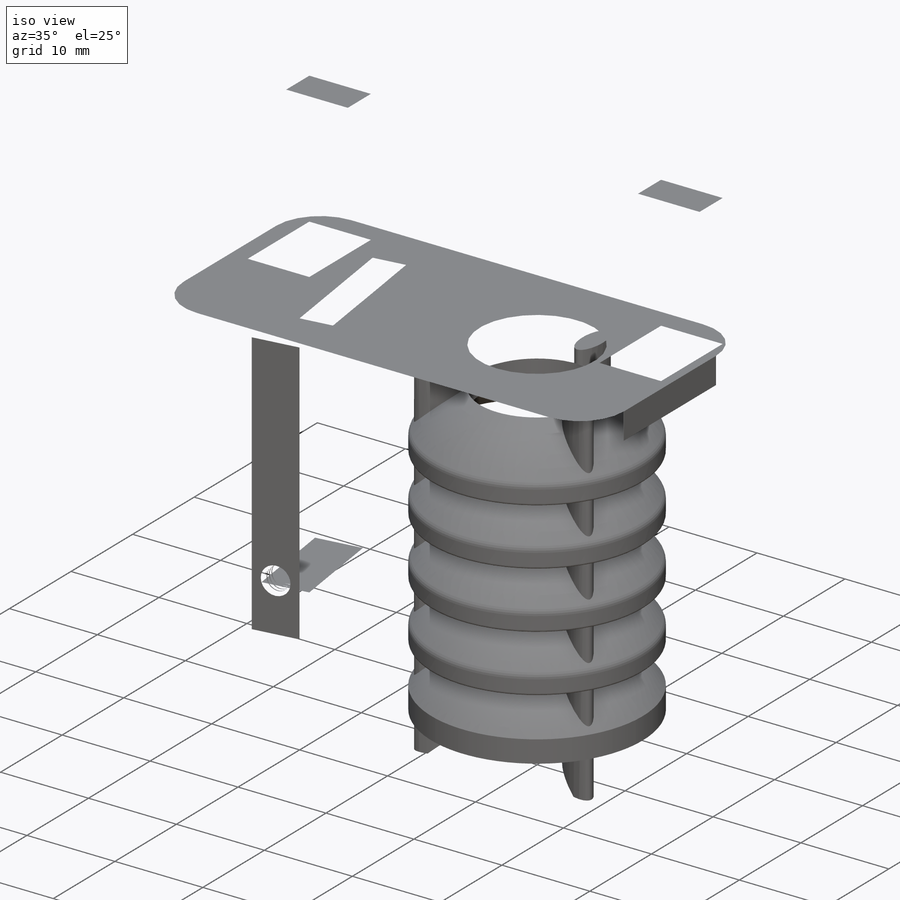
[diagram: iso view]
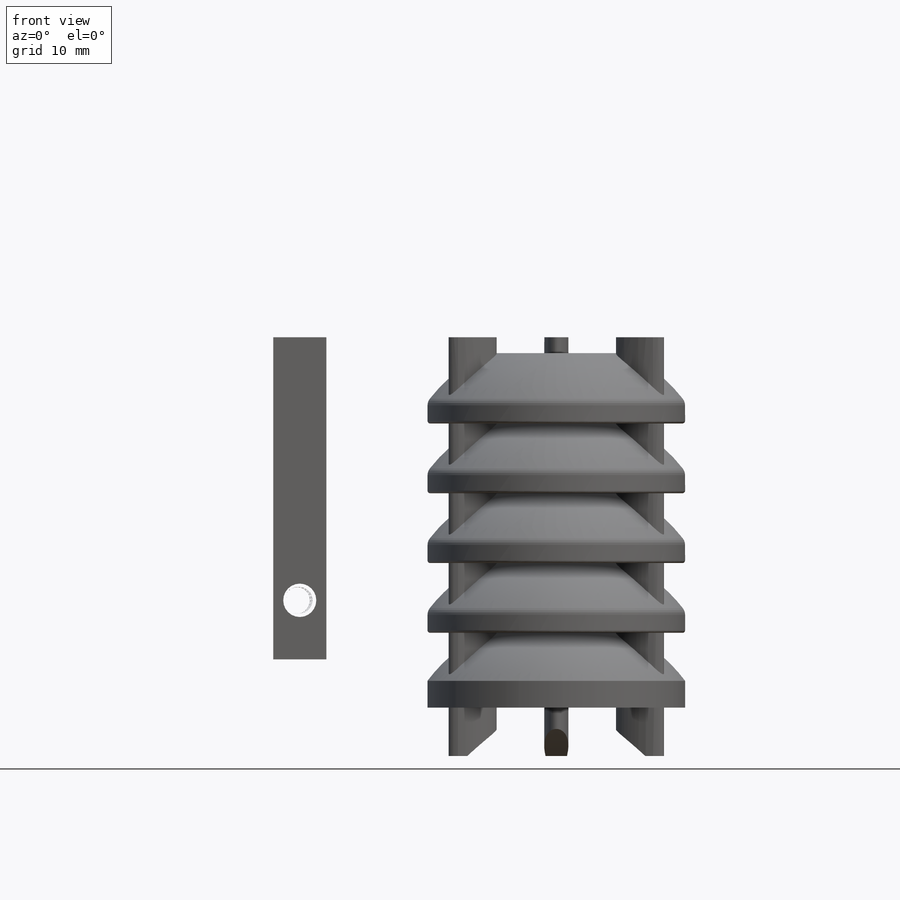
[diagram: front view]
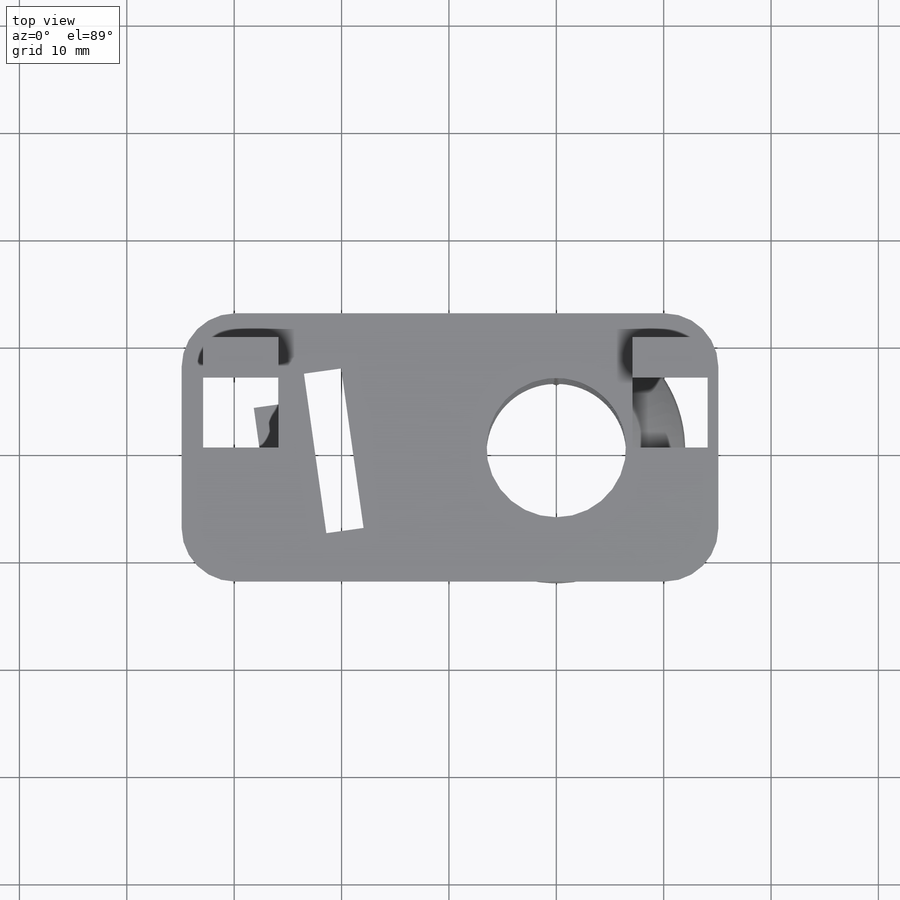
[diagram: top view]
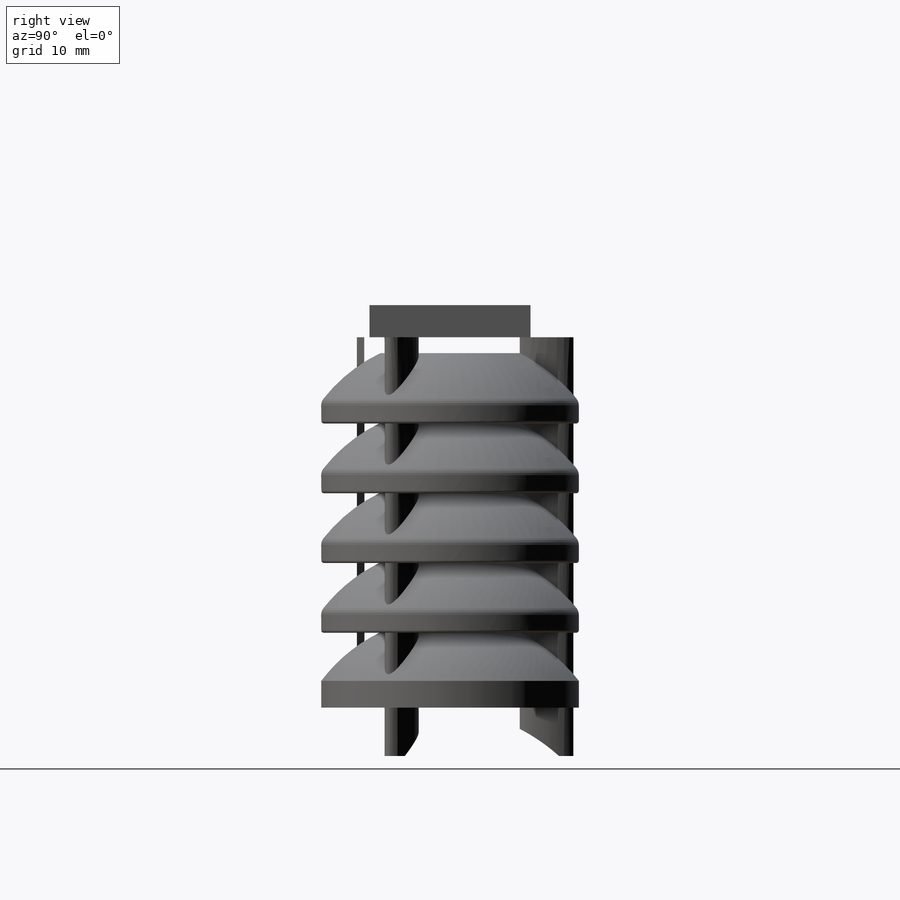
[diagram: right view]
SOLIDWORKS PART (.sldprt)
format: sldprt  version: not decoded by parser v0  size: 2,046,464 bytes
history: native  units: mm
features: sketch x25, plane x7, extrude x7, cut_extrude x7, fillet x5, cut_revolve x2, material x1, revolve x1, helix x1, sweep x1 (+13 scaffold rows collapsed)
feature tree (70):
  scaffold x13  (default folders/planes/origin — collapsed)
  material  "Material <not specified>"
  sketch  "Sketch1"  dims[D4=15.0mm D1=25.0mm D2=6.5mm D3=12.0mm D6=2.5mm D8=4.0mm D9=2.0mm D5=2.0 D7=6.0]
  revolve  "Revolve1"  Angle=360deg
  plane  "Plane1"
  sketch  "Sketch6"  dims[D1=25.0mm D2=25.0mm D3=38.0mm D4=3.9mm]
  extrude  "Boss-Extrude2"  Depth=3mm
  sketch  "Sketch2"  dims[D1=13.0mm]
  cut_extrude  "Cut-Extrude1"  Depth=10mm
  sketch  "Sketch3"  dims[c1.D1=2.0mm c1.D6=23.0mm c2.D1=2.25mm c2.D2=9.5mm c3.D2=120.0deg c3.D3=9.5mm c4.D3=120.0deg c4.D4=2.25mm c4.D5=2.25mm]
  extrude  "Boss-Extrude1"  Depth=14mm
  fillet  "Fillet1"  Radius=1mm
  fillet  "Fillet2"  Radius=1mm
  fillet  "Fillet3"  Radius=0.25mm
  fillet  "Fillet4"  Radius=0.25mm
  sketch  "Sketch9"
  extrude  "Boss-Extrude4"  Depth=12mm
  fillet  "Fillet5"  Radius=5mm
  sketch  "Sketch8"  dims[D1=~8.773508mm]
  cut_revolve  "Cut-Revolve1"  Angle=360deg
  sketch  "Sketch10"  dims[D1=25.0mm]
  cut_extrude  "Cut-Extrude2"  Depth=0.01mm
  plane  "Plane2"
  sketch  "Sketch12"
  plane  "Plane3"
  plane  "Plane4"  Offset=15mm
  sketch  "Sketch13"  dims[D1=177.8mm D2=~17.502679mm D3=107.95mm D4=101.6mm]
  sketch  "Sketch14"  dims[c1.D1=107.95mm c2.D1=~7.896174deg]
  plane  "Plane5"
  sketch  "Sketch15"  dims[D1=12.5mm D2=12.5mm]
  plane  "Plane6"
  sketch  "Sketch17"  dims[c1.D1=15.0mm c1.D2=~5.593385mm c1.D3=~6.163317mm c2.D2=~24.891505mm c3.D2=270.0deg c4.D2=7.5mm c4.D3=7.5mm c4.D4=30.0mm]
  extrude  "Boss-Extrude5"  Depth=5mm
  sketch  "Sketch18"  dims[D1=5.0mm D2=5.0mm D3=3.0mm D4=7.0mm D5=1.0mm D6=29.0mm]
  sketch  "Sketch19"  dims[D1=3.5mm]
  cut_extrude  "Cut-Extrude3"  [1 undecoded]
  sketch  "Sketch20"  dims[D1=23.0mm D2=3.0mm D3=11.0mm D4=4.0mm]
  cut_extrude  "Cut-Extrude4"  [1 undecoded]
  sketch  "Sketch24"
  extrude  "Boss-Extrude8"  [1 undecoded]
  sketch  "Sketch22"  dims[D1=33.0mm D2=7.0mm D3=10.0mm D4=2.0mm D5=1.0mm D6=2.5mm]
  extrude  "Boss-Extrude9"  Depth=15mm
  sketch  "Sketch25"  dims[c1.D1=3.75mm c1.D2=2.5mm c1.D3=3.75mm c2.D1=10.0mm]
  cut_extrude  "Cut-Extrude5"  [1 undecoded]
  sketch  "Sketch26"
  cut_extrude  "Cut-Extrude6"  Depth=3mm
  sketch  "Sketch27"  dims[D1=~48.377031mm D2=67.0mm D3=40.0mm D4=25.0mm D5=81.0mm D6=24.6mm]
  sketch  "Sketch30"  dims[D1=3.0mm D2=5.5mm D3=5.5mm]
  helix  "Helix/Spiral1"  Pitch=3mm
  plane  "Plane7"
  sketch  "Sketch33"  dims[c1.D1=0.5mm c1.D2=~0.628975mm c2.D2=60.0deg c2.D3=0.3252mm c2.D4=~0.124491mm c2.D5=1.2295mm c2.D6=5.5mm]
  sketch  "Sketch34"  dims[c1.D1=2.465mm c1.D2=~1.782419mm c1.D3=~1.782419mm c2.D2=5.5mm]
  cut_extrude  "Cut-Extrude7"  [1 undecoded]
  sweep  "Cut-Sweep4"
  cut_revolve  "Cut-Revolve2"  [1 undecoded]
  sketch  "Sketch33<164>"  dims[D1=360.0deg]
  sketch  "Sketch35"  dims[D1=24.0mm D2=5.0mm]
  extrude  "Boss-Extrude10"  Depth=1.5mm
decode coverage: 38 of 49 modeling features carry decoded parameters
note: ~ marks probable driven/reference dimensions
note: 6 parameter values undecoded
summary: no parameter record found for 6 features
note: suppression state not decoded; provenance and decode notes live in map.json
